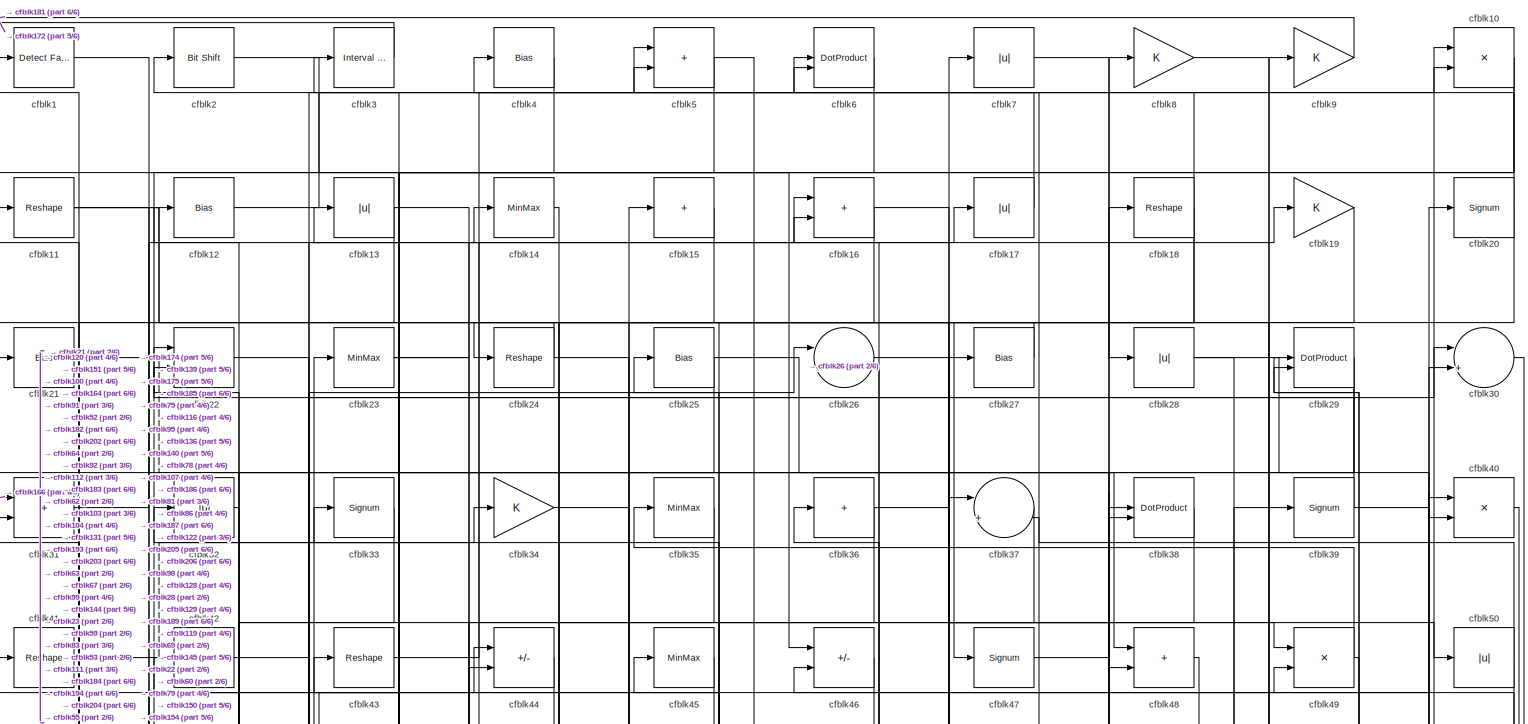
[diagram: root canvas - part 1/6, full width, top band]
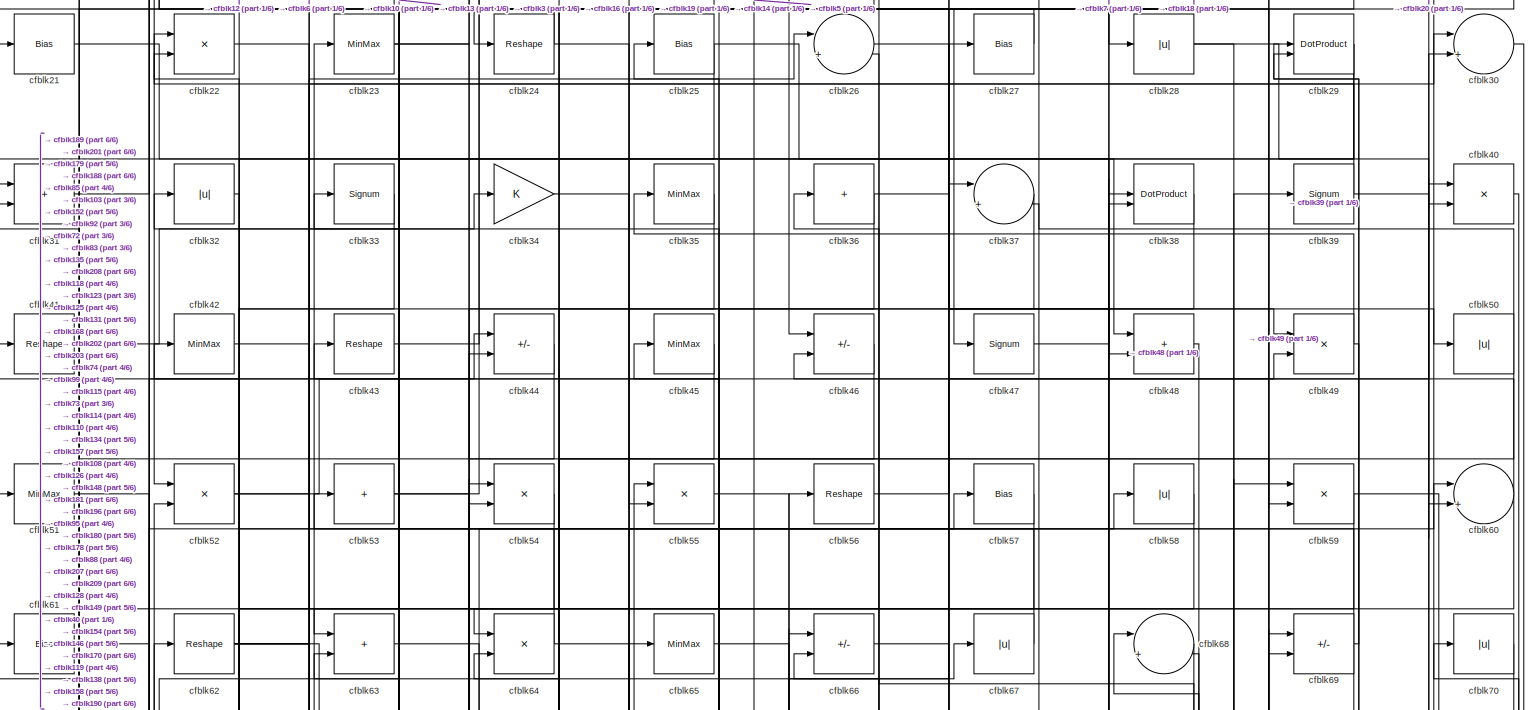
[diagram: root canvas - part 2/6, full width, top band]
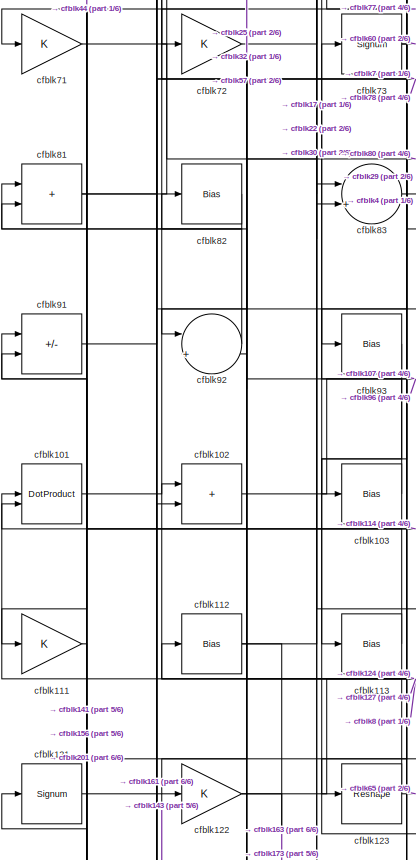
[diagram: root canvas - part 3/6, middle left region]
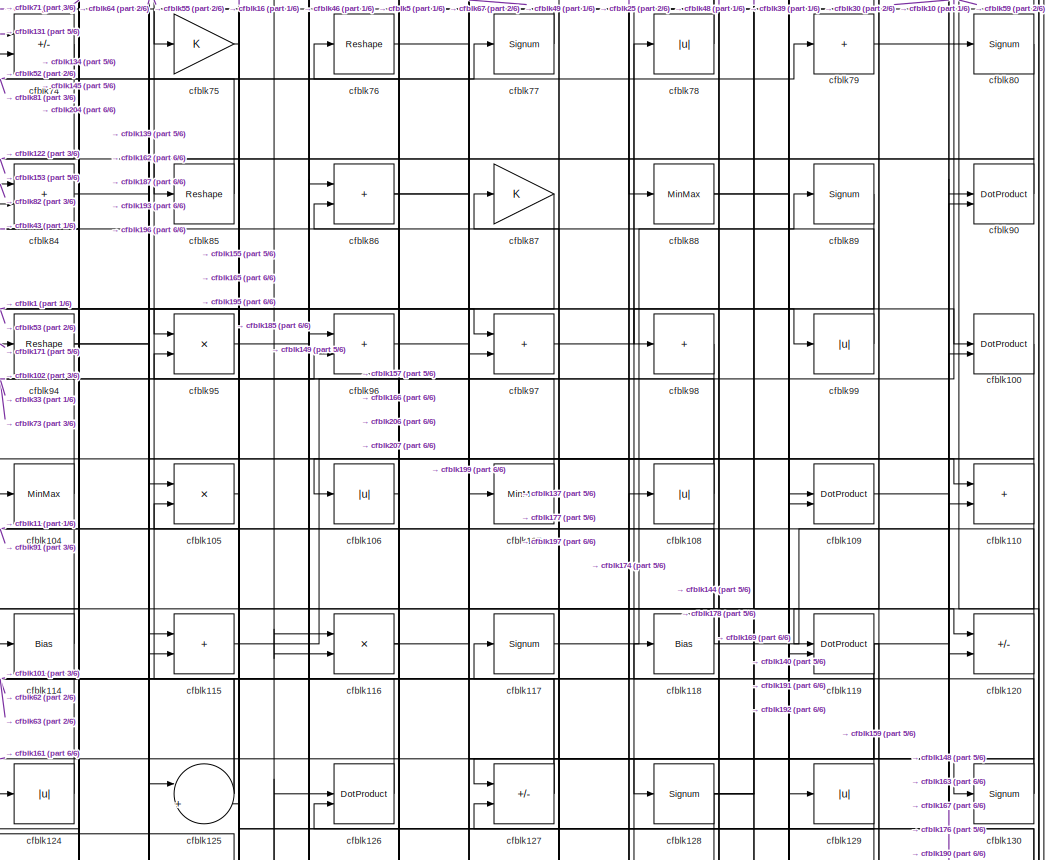
[diagram: root canvas - part 4/6, central region]
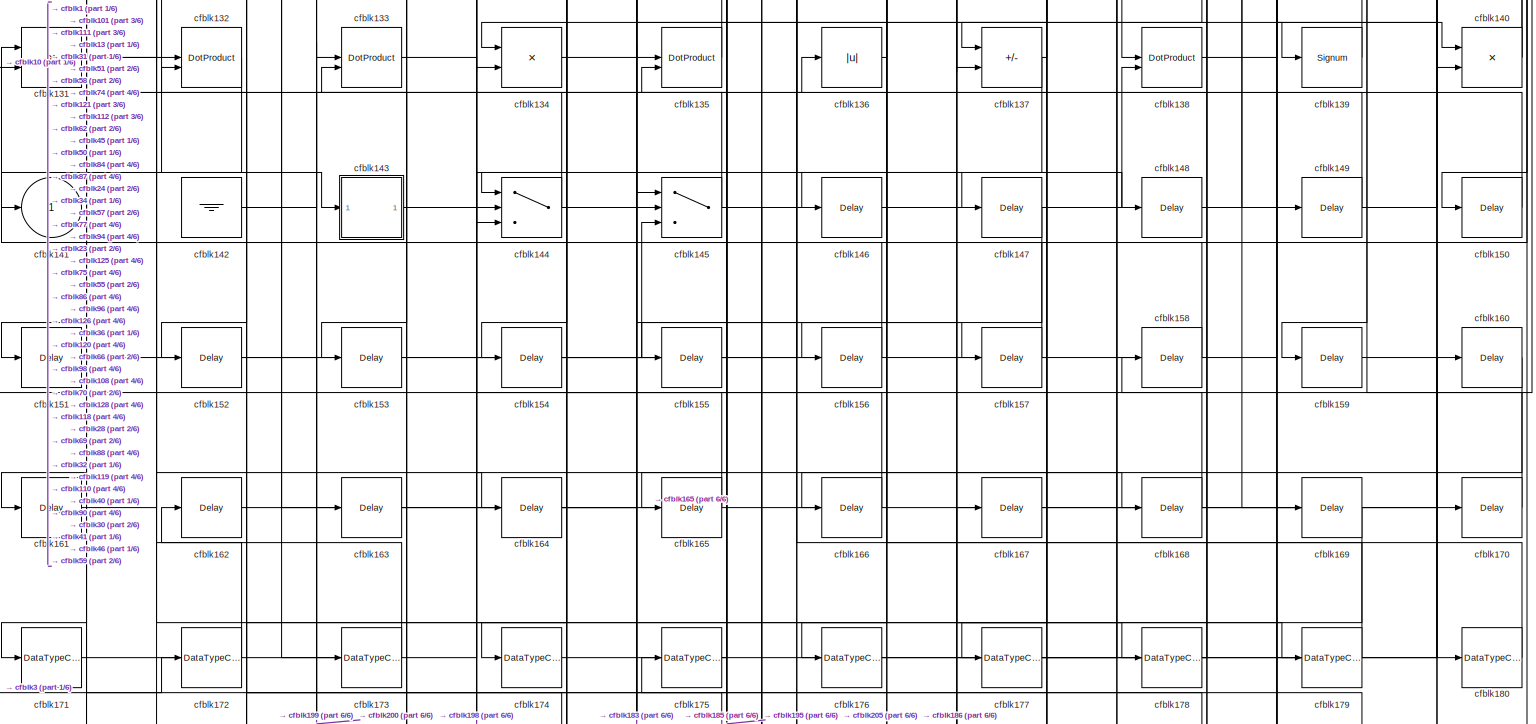
[diagram: root canvas - part 5/6, full width, bottom band]
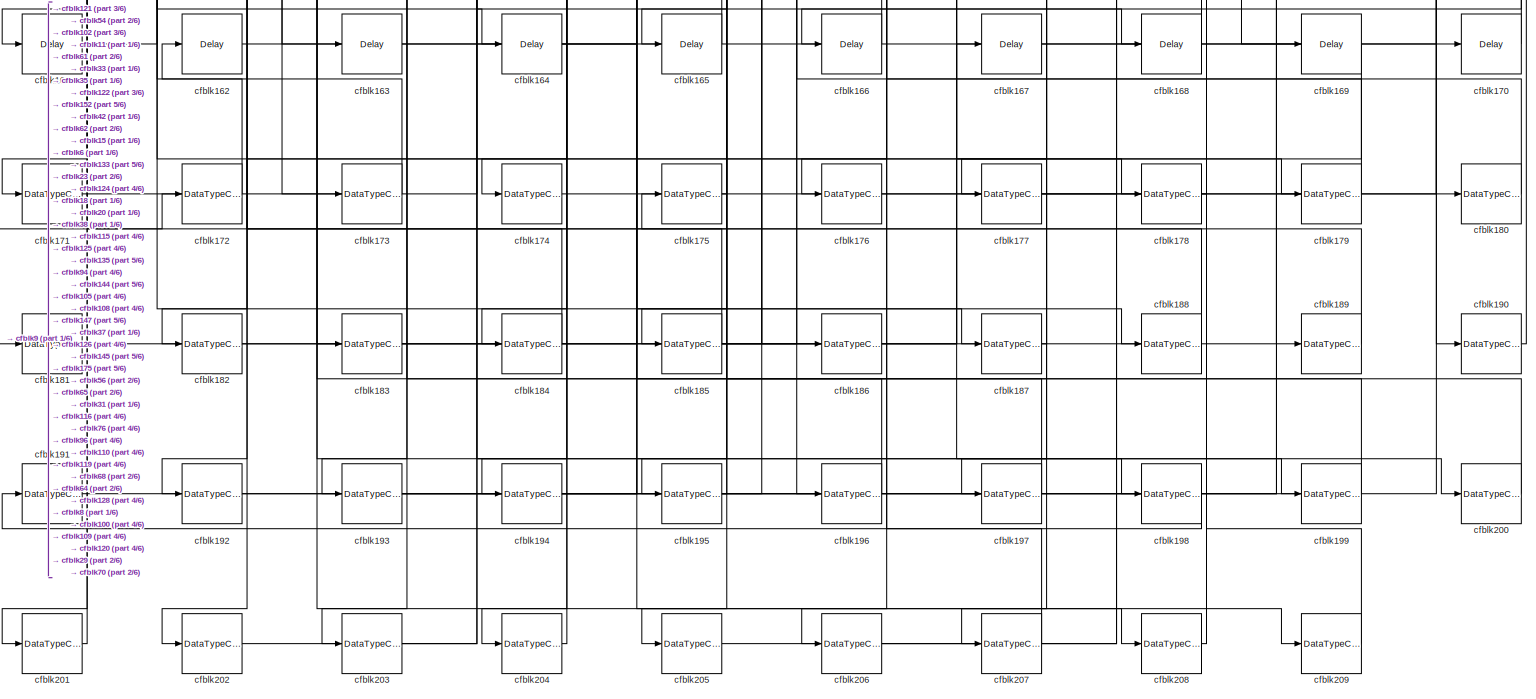
[diagram: root canvas - part 6/6, full width, bottom band]
MODEL slx_41d30a391259
KIND model
CONFIG AbsTol = auto
CONFIG EnableMultiTasking = off
CONFIG FixedStep = auto
CONFIG MaxStep = auto
CONFIG MinStep = auto
CONFIG RelTol = 1e-3
CONFIG SampleTimeConstraint = Unconstrained
CONFIG SolverName = VariableStepAuto
CONFIG StartTime = 0.0
CONFIG StopTime = 10.0
BLOCK [Reference] cfblk1  REF=hdlsllib/Logic and Bit
Operations/Detect Fall
Negative
  SourceBlock = hdlsllib/Logic and Bit\nOperations/Detect Fall\nNegative
  SourceType = Detect Fall Negative
BLOCK [Product] cfblk10
  Inputs = */
  RndMeth = Zero
  SaturateOnIntegerOverflow = on
BLOCK [DotProduct] cfblk100
  OutDataTypeStr = Inherit: Inherit via internal rule
BLOCK [DotProduct] cfblk101
  OutDataTypeStr = Inherit: Inherit via internal rule
BLOCK [Sum] cfblk102
  IconShape = rectangular
BLOCK [Bias] cfblk103
  Bias = 0.0
  SaturateOnIntegerOverflow = off
BLOCK [MinMax] cfblk104
BLOCK [Product] cfblk105
  Inputs = */
  RndMeth = Zero
  SaturateOnIntegerOverflow = on
BLOCK [Abs] cfblk106
  SaturateOnIntegerOverflow = off
BLOCK [MinMax] cfblk107
BLOCK [Abs] cfblk108
  SaturateOnIntegerOverflow = off
BLOCK [DotProduct] cfblk109
  OutDataTypeStr = Inherit: Inherit via internal rule
BLOCK [Reshape] cfblk11
BLOCK [Sum] cfblk110
  IconShape = rectangular
BLOCK [Gain] cfblk111
BLOCK [Bias] cfblk112
  Bias = 0.0
  SaturateOnIntegerOverflow = off
BLOCK [Bias] cfblk113
  Bias = 0.0
  SaturateOnIntegerOverflow = off
BLOCK [Bias] cfblk114
  Bias = 0.0
  SaturateOnIntegerOverflow = off
BLOCK [Sum] cfblk115
  IconShape = rectangular
BLOCK [Product] cfblk116
  Inputs = */
  RndMeth = Zero
  SaturateOnIntegerOverflow = on
BLOCK [Signum] cfblk117
BLOCK [Bias] cfblk118
  Bias = 0.0
  SaturateOnIntegerOverflow = off
BLOCK [DotProduct] cfblk119
  OutDataTypeStr = Inherit: Inherit via internal rule
BLOCK [Bias] cfblk12
  Bias = 0.0
  SaturateOnIntegerOverflow = off
BLOCK [Sum] cfblk120
  IconShape = rectangular
  Inputs = +-
BLOCK [Signum] cfblk121
BLOCK [Gain] cfblk122
BLOCK [Reshape] cfblk123
BLOCK [Abs] cfblk124
  SaturateOnIntegerOverflow = off
BLOCK [Sum] cfblk125
  Inputs = |++
BLOCK [DotProduct] cfblk126
  OutDataTypeStr = Inherit: Inherit via internal rule
BLOCK [Sum] cfblk127
  IconShape = rectangular
  Inputs = +-
BLOCK [Signum] cfblk128
BLOCK [Abs] cfblk129
  SaturateOnIntegerOverflow = off
BLOCK [Abs] cfblk13
  SaturateOnIntegerOverflow = off
BLOCK [Signum] cfblk130
BLOCK [Product] cfblk131
  Inputs = */
  RndMeth = Zero
  SaturateOnIntegerOverflow = on
BLOCK [DotProduct] cfblk132
  OutDataTypeStr = Inherit: Inherit via internal rule
BLOCK [DotProduct] cfblk133
  OutDataTypeStr = Inherit: Inherit via internal rule
BLOCK [Product] cfblk134
  Inputs = */
  RndMeth = Zero
  SaturateOnIntegerOverflow = on
BLOCK [DotProduct] cfblk135
  OutDataTypeStr = Inherit: Inherit via internal rule
BLOCK [Abs] cfblk136
  SaturateOnIntegerOverflow = off
BLOCK [Sum] cfblk137
  IconShape = rectangular
  Inputs = +-
BLOCK [DotProduct] cfblk138
  OutDataTypeStr = Inherit: Inherit via internal rule
BLOCK [Signum] cfblk139
BLOCK [MinMax] cfblk14
BLOCK [Product] cfblk140
  Inputs = */
  RndMeth = Zero
  SaturateOnIntegerOverflow = on
BLOCK [Outport] cfblk141
  VectorParamsAs1DForOutWhenUnconnected = off
BLOCK [Ground] cfblk142
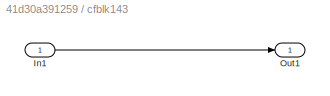
BLOCK [SubSystem] cfblk143
  LibrarySourceBlock = hdlsllib/Ports &\nSubsystems/Subsystem
BLOCK [Inport] cfblk143/In1
BLOCK [Outport] cfblk143/Out1
BLOCK [Switch] cfblk144
  InputSameDT = off
  SaturateOnIntegerOverflow = off
BLOCK [Switch] cfblk145
  InputSameDT = off
  SaturateOnIntegerOverflow = off
BLOCK [Delay] cfblk146
  InputPortMap = u0
  SampleTime = 1
BLOCK [Delay] cfblk147
  InputPortMap = u0
  SampleTime = 1
BLOCK [Delay] cfblk148
  InputPortMap = u0
  SampleTime = 1
BLOCK [Delay] cfblk149
  InputPortMap = u0
  SampleTime = 1
BLOCK [Sum] cfblk15
  IconShape = rectangular
  Inputs = +
BLOCK [Delay] cfblk150
  InputPortMap = u0
  SampleTime = 1
BLOCK [Delay] cfblk151
  InputPortMap = u0
  SampleTime = 1
BLOCK [Delay] cfblk152
  InputPortMap = u0
  SampleTime = 1
BLOCK [Delay] cfblk153
  InputPortMap = u0
  SampleTime = 1
BLOCK [Delay] cfblk154
  InputPortMap = u0
  SampleTime = 1
BLOCK [Delay] cfblk155
  InputPortMap = u0
  SampleTime = 1
BLOCK [Delay] cfblk156
  InputPortMap = u0
  SampleTime = 1
BLOCK [Delay] cfblk157
  InputPortMap = u0
  SampleTime = 1
BLOCK [Delay] cfblk158
  InputPortMap = u0
  SampleTime = 1
BLOCK [Delay] cfblk159
  InputPortMap = u0
  SampleTime = 1
BLOCK [Sum] cfblk16
  IconShape = rectangular
BLOCK [Delay] cfblk160
  InputPortMap = u0
  SampleTime = 1
BLOCK [Delay] cfblk161
  InputPortMap = u0
  SampleTime = 1
BLOCK [Delay] cfblk162
  InputPortMap = u0
  SampleTime = 1
BLOCK [Delay] cfblk163
  InputPortMap = u0
  SampleTime = 1
BLOCK [Delay] cfblk164
  InputPortMap = u0
  SampleTime = 1
BLOCK [Delay] cfblk165
  InputPortMap = u0
  SampleTime = 1
BLOCK [Delay] cfblk166
  InputPortMap = u0
  SampleTime = 1
BLOCK [Delay] cfblk167
  InputPortMap = u0
  SampleTime = 1
BLOCK [Delay] cfblk168
  InputPortMap = u0
  SampleTime = 1
BLOCK [Delay] cfblk169
  InputPortMap = u0
  SampleTime = 1
BLOCK [Abs] cfblk17
  SaturateOnIntegerOverflow = off
BLOCK [Delay] cfblk170
  InputPortMap = u0
  SampleTime = 1
BLOCK [DataTypeConversion] cfblk171
  OutDataTypeStr = uint8
  RndMeth = Floor
  SaturateOnIntegerOverflow = off
BLOCK [DataTypeConversion] cfblk172
  OutDataTypeStr = uint8
  RndMeth = Floor
  SaturateOnIntegerOverflow = off
BLOCK [DataTypeConversion] cfblk173
  OutDataTypeStr = uint8
  RndMeth = Floor
  SaturateOnIntegerOverflow = off
BLOCK [DataTypeConversion] cfblk174
  OutDataTypeStr = uint8
  RndMeth = Floor
  SaturateOnIntegerOverflow = off
BLOCK [DataTypeConversion] cfblk175
  OutDataTypeStr = uint8
  RndMeth = Floor
  SaturateOnIntegerOverflow = off
BLOCK [DataTypeConversion] cfblk176
  OutDataTypeStr = uint8
  RndMeth = Floor
  SaturateOnIntegerOverflow = off
BLOCK [DataTypeConversion] cfblk177
  OutDataTypeStr = uint8
  RndMeth = Floor
  SaturateOnIntegerOverflow = off
BLOCK [DataTypeConversion] cfblk178
  OutDataTypeStr = uint8
  RndMeth = Floor
  SaturateOnIntegerOverflow = off
BLOCK [DataTypeConversion] cfblk179
  OutDataTypeStr = uint8
  RndMeth = Floor
  SaturateOnIntegerOverflow = off
BLOCK [Reshape] cfblk18
BLOCK [DataTypeConversion] cfblk180
  OutDataTypeStr = uint8
  RndMeth = Floor
  SaturateOnIntegerOverflow = off
BLOCK [DataTypeConversion] cfblk181
  OutDataTypeStr = uint8
  RndMeth = Floor
  SaturateOnIntegerOverflow = off
BLOCK [DataTypeConversion] cfblk182
  OutDataTypeStr = uint8
  RndMeth = Floor
  SaturateOnIntegerOverflow = off
BLOCK [DataTypeConversion] cfblk183
  OutDataTypeStr = uint8
  RndMeth = Floor
  SaturateOnIntegerOverflow = off
BLOCK [DataTypeConversion] cfblk184
  OutDataTypeStr = uint8
  RndMeth = Floor
  SaturateOnIntegerOverflow = off
BLOCK [DataTypeConversion] cfblk185
  RndMeth = Floor
  SaturateOnIntegerOverflow = off
BLOCK [DataTypeConversion] cfblk186
  OutDataTypeStr = uint8
  RndMeth = Floor
  SaturateOnIntegerOverflow = off
BLOCK [DataTypeConversion] cfblk187
  OutDataTypeStr = uint8
  RndMeth = Floor
  SaturateOnIntegerOverflow = off
BLOCK [DataTypeConversion] cfblk188
  OutDataTypeStr = uint8
  RndMeth = Floor
  SaturateOnIntegerOverflow = off
BLOCK [DataTypeConversion] cfblk189
  OutDataTypeStr = uint8
  RndMeth = Floor
  SaturateOnIntegerOverflow = off
BLOCK [Gain] cfblk19
BLOCK [DataTypeConversion] cfblk190
  OutDataTypeStr = uint8
  RndMeth = Floor
  SaturateOnIntegerOverflow = off
BLOCK [DataTypeConversion] cfblk191
  OutDataTypeStr = uint8
  RndMeth = Floor
  SaturateOnIntegerOverflow = off
BLOCK [DataTypeConversion] cfblk192
  OutDataTypeStr = uint8
  RndMeth = Floor
  SaturateOnIntegerOverflow = off
BLOCK [DataTypeConversion] cfblk193
  RndMeth = Floor
  SaturateOnIntegerOverflow = off
BLOCK [DataTypeConversion] cfblk194
  OutDataTypeStr = uint8
  RndMeth = Floor
  SaturateOnIntegerOverflow = off
BLOCK [DataTypeConversion] cfblk195
  RndMeth = Floor
  SaturateOnIntegerOverflow = off
BLOCK [DataTypeConversion] cfblk196
  OutDataTypeStr = uint8
  RndMeth = Floor
  SaturateOnIntegerOverflow = off
BLOCK [DataTypeConversion] cfblk197
  OutDataTypeStr = uint8
  RndMeth = Floor
  SaturateOnIntegerOverflow = off
BLOCK [DataTypeConversion] cfblk198
  OutDataTypeStr = uint8
  RndMeth = Floor
  SaturateOnIntegerOverflow = off
BLOCK [DataTypeConversion] cfblk199
  OutDataTypeStr = uint8
  RndMeth = Floor
  SaturateOnIntegerOverflow = off
BLOCK [Reference] cfblk2  REF=hdlsllib/Logic and Bit
Operations/Bit Shift
  SourceBlock = hdlsllib/Logic and Bit\nOperations/Bit Shift
  SourceType = Bit Shift
BLOCK [Signum] cfblk20
BLOCK [DataTypeConversion] cfblk200
  OutDataTypeStr = uint8
  RndMeth = Floor
  SaturateOnIntegerOverflow = off
BLOCK [DataTypeConversion] cfblk201
  OutDataTypeStr = uint8
  RndMeth = Floor
  SaturateOnIntegerOverflow = off
BLOCK [DataTypeConversion] cfblk202
  OutDataTypeStr = uint8
  RndMeth = Floor
  SaturateOnIntegerOverflow = off
BLOCK [DataTypeConversion] cfblk203
  OutDataTypeStr = uint8
  RndMeth = Floor
  SaturateOnIntegerOverflow = off
BLOCK [DataTypeConversion] cfblk204
  OutDataTypeStr = uint8
  RndMeth = Floor
  SaturateOnIntegerOverflow = off
BLOCK [DataTypeConversion] cfblk205
  OutDataTypeStr = uint8
  RndMeth = Floor
  SaturateOnIntegerOverflow = off
BLOCK [DataTypeConversion] cfblk206
  OutDataTypeStr = uint8
  RndMeth = Floor
  SaturateOnIntegerOverflow = off
BLOCK [DataTypeConversion] cfblk207
  OutDataTypeStr = uint8
  RndMeth = Floor
  SaturateOnIntegerOverflow = off
BLOCK [DataTypeConversion] cfblk208
  OutDataTypeStr = uint8
  RndMeth = Floor
  SaturateOnIntegerOverflow = off
BLOCK [DataTypeConversion] cfblk209
  OutDataTypeStr = uint8
  RndMeth = Floor
  SaturateOnIntegerOverflow = off
BLOCK [Bias] cfblk21
  Bias = 0.0
  SaturateOnIntegerOverflow = off
BLOCK [Product] cfblk22
  Inputs = */
  RndMeth = Zero
  SaturateOnIntegerOverflow = on
BLOCK [MinMax] cfblk23
BLOCK [Reshape] cfblk24
BLOCK [Bias] cfblk25
  Bias = 0.0
  SaturateOnIntegerOverflow = off
BLOCK [Sum] cfblk26
  Inputs = |++
BLOCK [Bias] cfblk27
  Bias = 0.0
  SaturateOnIntegerOverflow = off
BLOCK [Abs] cfblk28
  SaturateOnIntegerOverflow = off
BLOCK [DotProduct] cfblk29
  OutDataTypeStr = Inherit: Inherit via internal rule
BLOCK [Reference] cfblk3  REF=hdlsllib/Logic and Bit
Operations/Interval Test
  SourceBlock = hdlsllib/Logic and Bit\nOperations/Interval Test
  SourceType = Interval Test
BLOCK [Sum] cfblk30
  Inputs = |++
BLOCK [Sum] cfblk31
  IconShape = rectangular
BLOCK [Abs] cfblk32
  SaturateOnIntegerOverflow = off
BLOCK [Signum] cfblk33
BLOCK [Gain] cfblk34
BLOCK [MinMax] cfblk35
BLOCK [Sum] cfblk36
  IconShape = rectangular
  Inputs = +
BLOCK [Sum] cfblk37
  Inputs = |++
BLOCK [DotProduct] cfblk38
  OutDataTypeStr = Inherit: Inherit via internal rule
BLOCK [Signum] cfblk39
BLOCK [Bias] cfblk4
  Bias = 0.0
  SaturateOnIntegerOverflow = off
BLOCK [Product] cfblk40
  Inputs = */
  RndMeth = Zero
  SaturateOnIntegerOverflow = on
BLOCK [Reshape] cfblk41
BLOCK [MinMax] cfblk42
BLOCK [Reshape] cfblk43
BLOCK [Sum] cfblk44
  IconShape = rectangular
  Inputs = +-
BLOCK [MinMax] cfblk45
BLOCK [Sum] cfblk46
  IconShape = rectangular
  Inputs = +-
BLOCK [Signum] cfblk47
BLOCK [Sum] cfblk48
  IconShape = rectangular
BLOCK [Product] cfblk49
  Inputs = */
  RndMeth = Zero
  SaturateOnIntegerOverflow = on
BLOCK [Sum] cfblk5
  IconShape = rectangular
BLOCK [Abs] cfblk50
  SaturateOnIntegerOverflow = off
BLOCK [MinMax] cfblk51
BLOCK [Product] cfblk52
  Inputs = */
  RndMeth = Zero
  SaturateOnIntegerOverflow = on
BLOCK [Sum] cfblk53
  IconShape = rectangular
  Inputs = +
BLOCK [Product] cfblk54
  Inputs = */
  RndMeth = Zero
  SaturateOnIntegerOverflow = on
BLOCK [Product] cfblk55
  Inputs = */
  RndMeth = Zero
  SaturateOnIntegerOverflow = on
BLOCK [Reshape] cfblk56
BLOCK [Bias] cfblk57
  Bias = 0.0
  SaturateOnIntegerOverflow = off
BLOCK [Abs] cfblk58
  SaturateOnIntegerOverflow = off
BLOCK [Product] cfblk59
  Inputs = */
  RndMeth = Zero
  SaturateOnIntegerOverflow = on
BLOCK [DotProduct] cfblk6
  OutDataTypeStr = Inherit: Inherit via internal rule
BLOCK [Sum] cfblk60
  Inputs = |++
BLOCK [Bias] cfblk61
  Bias = 0.0
  SaturateOnIntegerOverflow = off
BLOCK [Reshape] cfblk62
BLOCK [Sum] cfblk63
  IconShape = rectangular
BLOCK [Product] cfblk64
  Inputs = */
  RndMeth = Zero
  SaturateOnIntegerOverflow = on
BLOCK [MinMax] cfblk65
BLOCK [Sum] cfblk66
  IconShape = rectangular
  Inputs = +-
BLOCK [Abs] cfblk67
  SaturateOnIntegerOverflow = off
BLOCK [Sum] cfblk68
  Inputs = |++
BLOCK [Sum] cfblk69
  IconShape = rectangular
  Inputs = +-
BLOCK [Abs] cfblk7
  SaturateOnIntegerOverflow = off
BLOCK [Abs] cfblk70
  SaturateOnIntegerOverflow = off
BLOCK [Gain] cfblk71
BLOCK [Gain] cfblk72
BLOCK [Signum] cfblk73
BLOCK [Sum] cfblk74
  IconShape = rectangular
  Inputs = +-
BLOCK [Gain] cfblk75
BLOCK [Reshape] cfblk76
BLOCK [Signum] cfblk77
BLOCK [Abs] cfblk78
  SaturateOnIntegerOverflow = off
BLOCK [Sum] cfblk79
  IconShape = rectangular
  Inputs = +
BLOCK [Gain] cfblk8
BLOCK [Signum] cfblk80
BLOCK [Sum] cfblk81
  IconShape = rectangular
BLOCK [Bias] cfblk82
  Bias = 0.0
  SaturateOnIntegerOverflow = off
BLOCK [Sum] cfblk83
  Inputs = |++
BLOCK [Sum] cfblk84
  IconShape = rectangular
BLOCK [Reshape] cfblk85
BLOCK [Sum] cfblk86
  IconShape = rectangular
BLOCK [Gain] cfblk87
BLOCK [MinMax] cfblk88
BLOCK [Signum] cfblk89
BLOCK [Gain] cfblk9
BLOCK [DotProduct] cfblk90
  OutDataTypeStr = Inherit: Inherit via internal rule
BLOCK [Sum] cfblk91
  IconShape = rectangular
  Inputs = +-
BLOCK [Sum] cfblk92
  Inputs = |++
BLOCK [Bias] cfblk93
  Bias = 0.0
  SaturateOnIntegerOverflow = off
BLOCK [Reshape] cfblk94
BLOCK [Product] cfblk95
  Inputs = */
  RndMeth = Zero
  SaturateOnIntegerOverflow = on
BLOCK [Sum] cfblk96
  IconShape = rectangular
BLOCK [Sum] cfblk97
  IconShape = rectangular
BLOCK [Sum] cfblk98
  IconShape = rectangular
  Inputs = +
BLOCK [Abs] cfblk99
  SaturateOnIntegerOverflow = off
LINE cfblk100:1 -> cfblk206:1
LINE cfblk101:1 -> cfblk102:1
LINE cfblk102:1 -> cfblk96:2
LINE cfblk103:1 -> cfblk22:1
LINE cfblk104:1 -> cfblk33:1
LINE cfblk105:1 -> cfblk195:1
LINE cfblk106:1 -> cfblk86:2
LINE cfblk107:1 -> cfblk73:1
NET cfblk108:1 -> cfblk106:1, cfblk165:1, cfblk55:1
LINE cfblk109:1 -> cfblk190:1
NET cfblk10:1 -> cfblk131:2, cfblk63:1
NET cfblk110:1 -> cfblk104:1, cfblk197:1
LINE cfblk111:1 -> cfblk141:1
NET cfblk112:1 -> cfblk173:1, cfblk17:1
LINE cfblk113:1 -> cfblk91:2
LINE cfblk114:1 -> cfblk91:1
LINE cfblk115:1 -> cfblk80:1
NET cfblk116:1 -> cfblk166:1, cfblk97:2
LINE cfblk117:1 -> cfblk89:1
NET cfblk118:1 -> cfblk53:1, cfblk90:1
NET cfblk119:1 -> cfblk159:1, cfblk161:1, cfblk177:1, cfblk30:2
NET cfblk11:1 -> cfblk107:1, cfblk129:1, cfblk164:1
NET cfblk120:1 -> cfblk11:1, cfblk137:2
LINE cfblk121:1 -> cfblk143:1
NET cfblk122:1 -> cfblk163:1, cfblk8:1
NET cfblk123:1 -> cfblk112:1, cfblk65:1
LINE cfblk124:1 -> cfblk101:1
NET cfblk125:1 -> cfblk62:1, cfblk63:2
LINE cfblk126:1 -> cfblk25:1
NET cfblk127:1 -> cfblk82:1, cfblk84:1
NET cfblk128:1 -> cfblk144:1, cfblk169:1, cfblk39:1, cfblk59:1
NET cfblk129:1 -> cfblk127:2, cfblk95:2
LINE cfblk12:1 -> cfblk10:1
NET cfblk130:1 -> cfblk117:1, cfblk127:1
NET cfblk131:1 -> cfblk58:1, cfblk74:1
LINE cfblk132:1 -> cfblk171:1
LINE cfblk133:1 -> cfblk198:1
LINE cfblk134:1 -> cfblk57:1
LINE cfblk135:1 -> cfblk23:1
LINE cfblk136:1 -> cfblk36:1
NET cfblk137:1 -> cfblk156:1, cfblk87:1
LINE cfblk138:1 -> cfblk69:1
LINE cfblk139:1 -> cfblk32:1
NET cfblk13:1 -> cfblk151:1, cfblk59:2
NET cfblk140:1 -> cfblk41:1, cfblk46:2
LINE cfblk142:1 -> cfblk136:1
LINE cfblk143/In1:1 -> cfblk143/Out1:1
LINE cfblk143:1 -> cfblk147:1
NET cfblk144:1 -> cfblk31:2, cfblk77:1
NET cfblk145:1 -> cfblk186:1, cfblk40:1, cfblk84:2
LINE cfblk146:1 -> cfblk138:2
LINE cfblk147:1 -> cfblk205:1
LINE cfblk148:1 -> cfblk110:2
LINE cfblk149:1 -> cfblk86:1
LINE cfblk14:1 -> cfblk64:1
LINE cfblk150:1 -> cfblk1:1
LINE cfblk151:1 -> cfblk145:3
LINE cfblk152:1 -> cfblk200:1
LINE cfblk153:1 -> cfblk96:1
LINE cfblk154:1 -> cfblk69:2
LINE cfblk155:1 -> cfblk125:2
LINE cfblk156:1 -> cfblk101:2
LINE cfblk157:1 -> cfblk126:2
LINE cfblk158:1 -> cfblk145:2
LINE cfblk159:1 -> cfblk180:1
LINE cfblk15:1 -> cfblk193:1
LINE cfblk160:1 -> cfblk176:1
LINE cfblk161:1 -> cfblk102:2
LINE cfblk162:1 -> cfblk115:2
LINE cfblk163:1 -> cfblk120:2
LINE cfblk164:1 -> cfblk209:1
LINE cfblk165:1 -> cfblk144:2
LINE cfblk166:1 -> cfblk31:1
LINE cfblk167:1 -> cfblk100:2
LINE cfblk168:1 -> cfblk64:2
LINE cfblk169:1 -> cfblk192:1
NET cfblk16:1 -> cfblk50:1, cfblk75:1
LINE cfblk170:1 -> cfblk29:2
LINE cfblk171:1 -> cfblk94:1
LINE cfblk172:1 -> cfblk132:1
LINE cfblk173:1 -> cfblk132:2
LINE cfblk174:1 -> cfblk108:1
LINE cfblk175:1 -> cfblk45:1
LINE cfblk176:1 -> cfblk90:2
LINE cfblk177:1 -> cfblk160:1
LINE cfblk178:1 -> cfblk118:1
LINE cfblk179:1 -> cfblk66:1
LINE cfblk17:1 -> cfblk6:1
LINE cfblk180:1 -> cfblk66:2
LINE cfblk181:1 -> cfblk56:1
LINE cfblk182:1 -> cfblk9:1
LINE cfblk183:1 -> cfblk135:1
LINE cfblk184:1 -> cfblk42:1
NET cfblk185:1 -> cfblk116:1, cfblk167:1, cfblk175:1
LINE cfblk186:1 -> cfblk37:1
LINE cfblk187:1 -> cfblk37:2
LINE cfblk188:1 -> cfblk162:1
LINE cfblk189:1 -> cfblk61:1
NET cfblk18:1 -> cfblk184:1, cfblk55:2, cfblk5:2
LINE cfblk190:1 -> cfblk70:1
LINE cfblk191:1 -> cfblk109:1
LINE cfblk192:1 -> cfblk109:2
NET cfblk193:1 -> cfblk125:1, cfblk170:1
LINE cfblk194:1 -> cfblk15:1
NET cfblk195:1 -> cfblk126:1, cfblk135:2
LINE cfblk196:1 -> cfblk105:1
LINE cfblk197:1 -> cfblk105:2
LINE cfblk198:1 -> cfblk191:1
LINE cfblk199:1 -> cfblk133:1
LINE cfblk19:1 -> cfblk47:1
LINE cfblk1:1 -> cfblk100:1
LINE cfblk200:1 -> cfblk133:2
LINE cfblk201:1 -> cfblk121:1
LINE cfblk202:1 -> cfblk54:1
LINE cfblk203:1 -> cfblk54:2
LINE cfblk204:1 -> cfblk124:1
LINE cfblk205:1 -> cfblk38:1
LINE cfblk206:1 -> cfblk38:2
LINE cfblk207:1 -> cfblk76:1
LINE cfblk208:1 -> cfblk68:1
LINE cfblk209:1 -> cfblk68:2
NET cfblk20:1 -> cfblk194:1, cfblk4:1
LINE cfblk21:1 -> cfblk48:1
LINE cfblk22:1 -> cfblk83:1
NET cfblk23:1 -> cfblk168:1, cfblk16:2
NET cfblk24:1 -> cfblk157:1, cfblk21:1
NET cfblk25:1 -> cfblk72:1, cfblk88:1
LINE cfblk26:1 -> cfblk49:1
LINE cfblk27:1 -> cfblk24:1
NET cfblk28:1 -> cfblk149:1, cfblk40:2
NET cfblk29:1 -> cfblk123:1, cfblk51:1
LINE cfblk2:1 -> cfblk46:1
LINE cfblk30:1 -> cfblk158:1
LINE cfblk31:1 -> cfblk14:1
LINE cfblk32:1 -> cfblk92:1
LINE cfblk33:1 -> cfblk202:1
LINE cfblk34:1 -> cfblk145:1
LINE cfblk35:1 -> cfblk182:1
NET cfblk36:1 -> cfblk144:3, cfblk48:2
LINE cfblk37:1 -> cfblk185:1
LINE cfblk38:1 -> cfblk204:1
NET cfblk39:1 -> cfblk22:2, cfblk60:2
LINE cfblk3:1 -> cfblk172:1
LINE cfblk40:1 -> cfblk150:1
LINE cfblk41:1 -> cfblk34:1
LINE cfblk42:1 -> cfblk183:1
LINE cfblk43:1 -> cfblk5:1
LINE cfblk44:1 -> cfblk111:1
LINE cfblk45:1 -> cfblk174:1
LINE cfblk46:1 -> cfblk95:1
LINE cfblk47:1 -> cfblk18:1
LINE cfblk48:1 -> cfblk98:1
NET cfblk49:1 -> cfblk119:1, cfblk35:1
LINE cfblk4:1 -> cfblk103:1
NET cfblk50:1 -> cfblk154:1, cfblk2:1
LINE cfblk51:1 -> cfblk179:1
NET cfblk52:1 -> cfblk20:1, cfblk26:1
NET cfblk53:1 -> cfblk19:1, cfblk99:1
LINE cfblk54:1 -> cfblk201:1
LINE cfblk55:1 -> cfblk148:1
LINE cfblk56:1 -> cfblk27:1
LINE cfblk57:1 -> cfblk92:2
LINE cfblk58:1 -> cfblk152:1
NET cfblk59:1 -> cfblk131:1, cfblk74:2
NET cfblk5:1 -> cfblk116:2, cfblk52:1
NET cfblk60:1 -> cfblk114:1, cfblk26:2
LINE cfblk61:1 -> cfblk188:1
NET cfblk62:1 -> cfblk119:2, cfblk134:2, cfblk208:1, cfblk6:2
LINE cfblk63:1 -> cfblk115:1
NET cfblk64:1 -> cfblk110:1, cfblk12:1
LINE cfblk65:1 -> cfblk196:1
LINE cfblk66:1 -> cfblk178:1
LINE cfblk67:1 -> cfblk13:1
LINE cfblk68:1 -> cfblk207:1
NET cfblk69:1 -> cfblk146:1, cfblk29:1, cfblk3:1
LINE cfblk6:1 -> cfblk203:1
LINE cfblk70:1 -> cfblk138:1
LINE cfblk71:1 -> cfblk83:2
LINE cfblk72:1 -> cfblk30:1
NET cfblk73:1 -> cfblk60:1, cfblk93:1
LINE cfblk74:1 -> cfblk153:1
LINE cfblk75:1 -> cfblk155:1
LINE cfblk76:1 -> cfblk130:1
LINE cfblk77:1 -> cfblk71:1
LINE cfblk78:1 -> cfblk16:1
LINE cfblk79:1 -> cfblk10:2
LINE cfblk7:1 -> cfblk28:1
LINE cfblk80:1 -> cfblk122:1
NET cfblk81:1 -> cfblk78:1, cfblk7:1
LINE cfblk82:1 -> cfblk81:2
LINE cfblk83:1 -> cfblk44:2
LINE cfblk84:1 -> cfblk97:1
LINE cfblk85:1 -> cfblk52:2
NET cfblk86:1 -> cfblk120:1, cfblk49:2
LINE cfblk87:1 -> cfblk134:1
NET cfblk88:1 -> cfblk140:1, cfblk140:2
LINE cfblk89:1 -> cfblk128:1
LINE cfblk8:1 -> cfblk189:1
LINE cfblk90:1 -> cfblk85:1
LINE cfblk91:1 -> cfblk44:1
LINE cfblk92:1 -> cfblk81:1
LINE cfblk93:1 -> cfblk113:1
NET cfblk94:1 -> cfblk139:1, cfblk187:1
LINE cfblk95:1 -> cfblk67:1
LINE cfblk96:1 -> cfblk199:1
LINE cfblk97:1 -> cfblk79:1
LINE cfblk98:1 -> cfblk137:1
LINE cfblk99:1 -> cfblk43:1
LINE cfblk9:1 -> cfblk181:1
note: NET lines group one-source signal fan-out (src -> all destinations, sorted); 1:1 wires keep LINE
